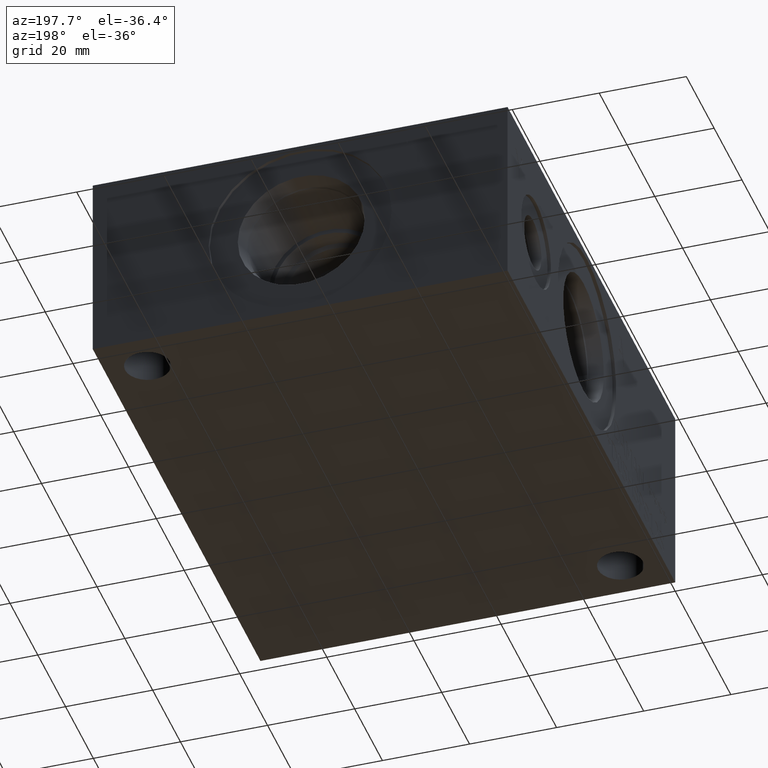
[diagram: clean part render]
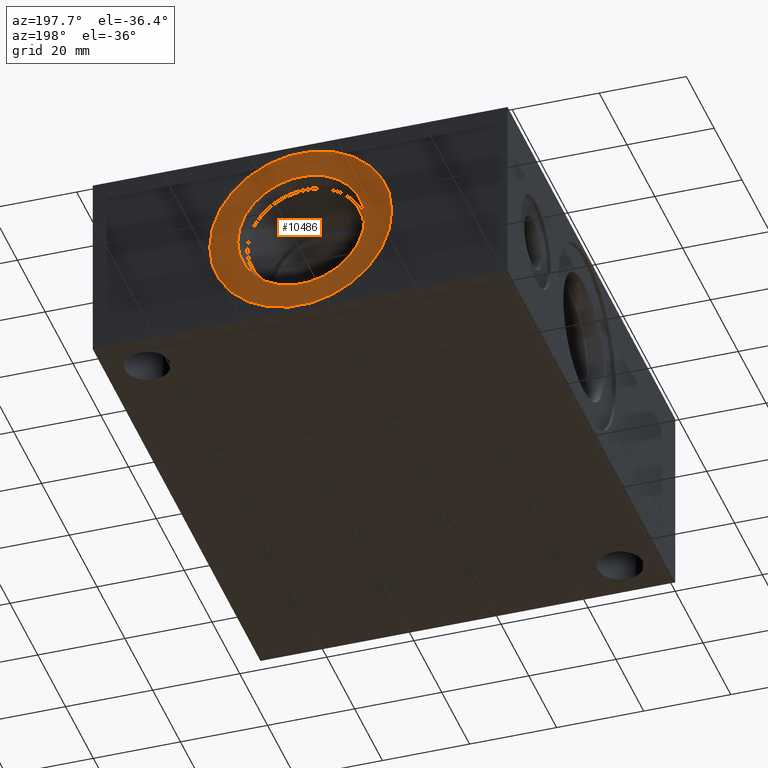
[diagram: same view with one face highlighted and labeled with its STEP entity id]
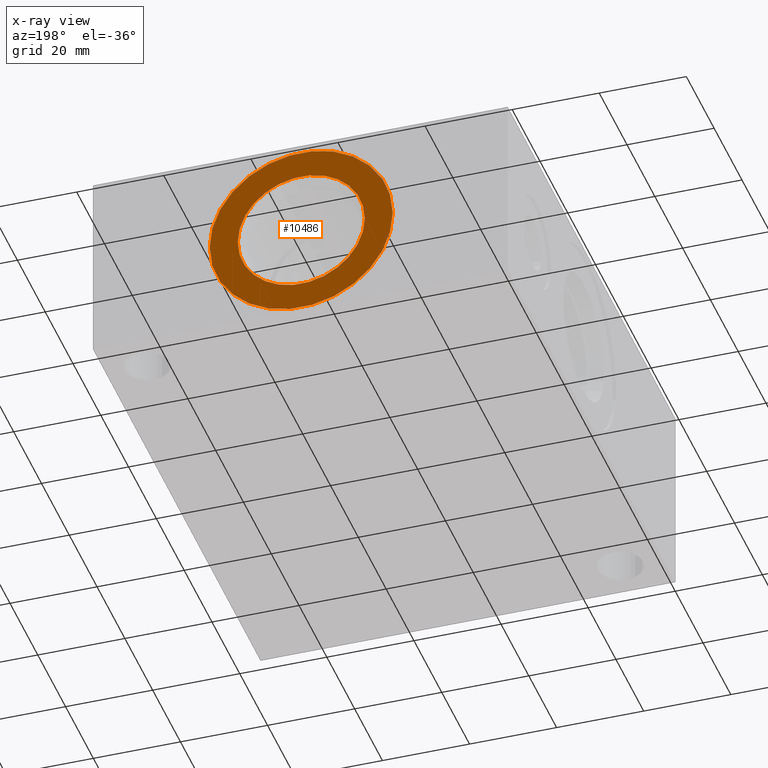
[diagram: x-ray of the same camera — body ghosted, the highlighted face saturated]
A machine part, auxiliary view. The second image highlights one B-rep face of the part: STEP entity #10486.
The next image is the same camera in x-ray: the body ghosted, the highlighted face saturated — about 0% of this face is hidden behind the body in this view.
In plain terms, the highlighted planar face has unit normal (0, -1, 0).
Its self-contained STEP definition (entity closure, byte-faithful):
#269=CIRCLE('',#11075,21.0185);
#270=CIRCLE('',#11076,21.0185);
#271=CIRCLE('',#11078,14.5923);
#272=CIRCLE('',#11079,14.5923);
#334=FACE_BOUND('',#1858,.T.);
#1267=FACE_OUTER_BOUND('',#1857,.T.);
#1857=EDGE_LOOP('',(#9139,#9140));
#1858=EDGE_LOOP('',(#9141,#9142));
#4873=VERTEX_POINT('',#17906);
#4874=VERTEX_POINT('',#17908);
#4875=VERTEX_POINT('',#17912);
#4876=VERTEX_POINT('',#17913);
#6316=EDGE_CURVE('',#4873,#4874,#269,.T.);
#6317=EDGE_CURVE('',#4874,#4873,#270,.T.);
#6318=EDGE_CURVE('',#4875,#4876,#271,.T.);
#6319=EDGE_CURVE('',#4876,#4875,#272,.T.);
#9139=ORIENTED_EDGE('',*,*,#6317,.F.);
#9140=ORIENTED_EDGE('',*,*,#6316,.F.);
#9141=ORIENTED_EDGE('',*,*,#6318,.T.);
#9142=ORIENTED_EDGE('',*,*,#6319,.T.);
#9538=PLANE('',#11077);
#10486=ADVANCED_FACE('',(#1267,#334),#9538,.F.);
#11075=AXIS2_PLACEMENT_3D('',#17909,#13225,#13226);
#11076=AXIS2_PLACEMENT_3D('',#17910,#13227,#13228);
#11077=AXIS2_PLACEMENT_3D('',#17911,#13229,#13230);
#11078=AXIS2_PLACEMENT_3D('',#17914,#13231,#13232);
#11079=AXIS2_PLACEMENT_3D('',#17915,#13233,#13234);
#13225=DIRECTION('center_axis',(0.,-1.,0.));
#13226=DIRECTION('ref_axis',(1.,0.,0.));
#13227=DIRECTION('center_axis',(0.,-1.,0.));
#13228=DIRECTION('ref_axis',(1.,0.,0.));
#13229=DIRECTION('center_axis',(0.,-1.,0.));
#13230=DIRECTION('ref_axis',(0.,0.,-1.));
#13231=DIRECTION('center_axis',(0.,-1.,0.));
#13232=DIRECTION('ref_axis',(1.,0.,0.));
#13233=DIRECTION('center_axis',(0.,-1.,0.));
#13234=DIRECTION('ref_axis',(1.,0.,0.));
#17906=CARTESIAN_POINT('',(26.6065,119.8626,22.225));
#17908=CARTESIAN_POINT('',(68.6435,119.8626,22.225));
#17909=CARTESIAN_POINT('Origin',(47.625,119.8626,22.225));
#17910=CARTESIAN_POINT('Origin',(47.625,119.8626,22.225));
#17911=CARTESIAN_POINT('Origin',(62.2173,119.8626,22.225));
#17912=CARTESIAN_POINT('',(62.2173,119.8626,22.225));
#17913=CARTESIAN_POINT('',(33.0327,119.8626,22.225));
#17914=CARTESIAN_POINT('Origin',(47.625,119.8626,22.225));
#17915=CARTESIAN_POINT('Origin',(47.625,119.8626,22.225));